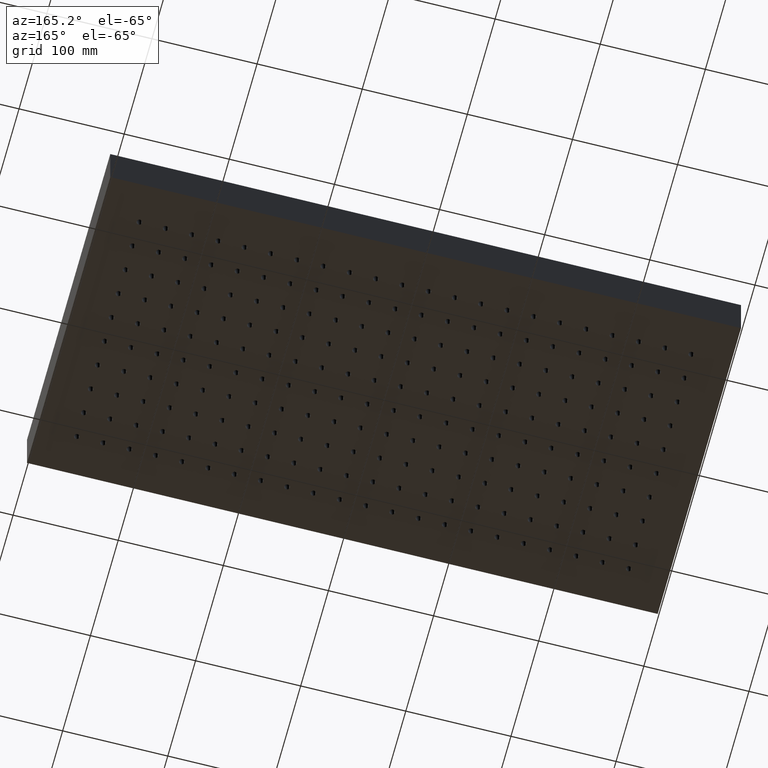
[diagram: clean part render]
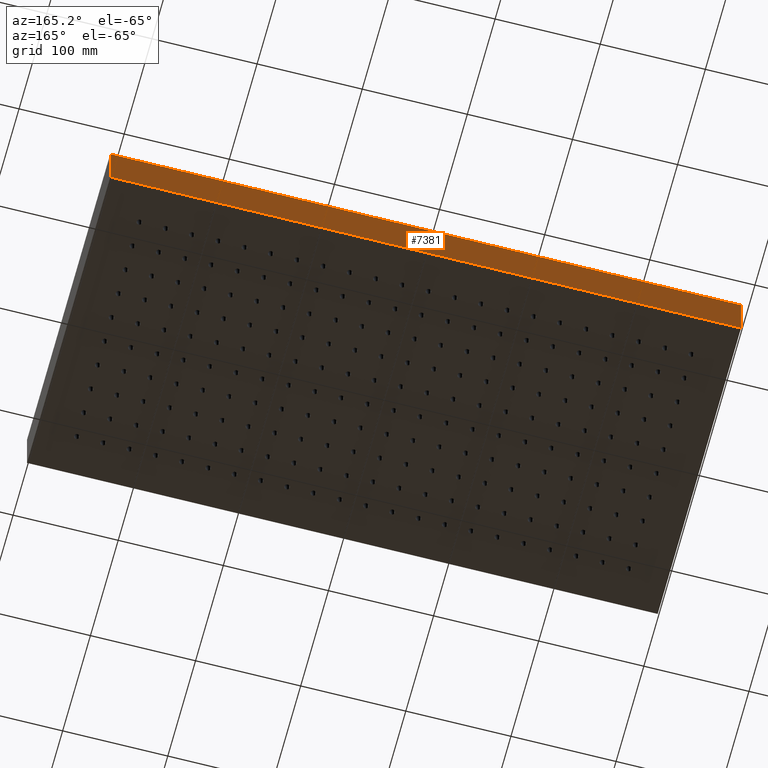
[diagram: same view with one face highlighted and labeled with its STEP entity id]
A machine part, auxiliary view. The second image highlights one B-rep face of the part: STEP entity #7381.
In plain terms, the highlighted planar face has unit normal (0, -1, 0).
Its self-contained STEP definition (entity closure, byte-faithful):
#57 = LINE ( 'NONE', #81, #9912 ) ;
#81 = CARTESIAN_POINT ( 'NONE',  ( -300.0000000000000000, 150.0000000000000000, 0.0000000000000000000 ) ) ;
#489 = CARTESIAN_POINT ( 'NONE',  ( -300.0000000000000000, 150.0000000000000000, 50.00000000000000000 ) ) ;
#505 = CARTESIAN_POINT ( 'NONE',  ( -300.0000000000000000, 150.0000000000000000, 50.00000000000000000 ) ) ;
#1280 = CARTESIAN_POINT ( 'NONE',  ( -300.0000000000000000, 150.0000000000000000, 50.00000000000000000 ) ) ;
#1364 = VERTEX_POINT ( 'NONE', #10774 ) ;
#1576 = VERTEX_POINT ( 'NONE', #7991 ) ;
#1756 = PLANE ( 'NONE',  #10557 ) ;
#2719 = LINE ( 'NONE', #1280, #15756 ) ;
#2885 = VERTEX_POINT ( 'NONE', #14666 ) ;
#2984 = VECTOR ( 'NONE', #15131, 1000.000000000000000 ) ;
#3130 = DIRECTION ( 'NONE',  ( 0.0000000000000000000, -1.000000000000000000, 0.0000000000000000000 ) ) ;
#3416 = VERTEX_POINT ( 'NONE', #505 ) ;
#3931 = EDGE_LOOP ( 'NONE', ( #7212, #7792, #7980, #8559 ) ) ;
#5084 = CARTESIAN_POINT ( 'NONE',  ( 299.9999999999999400, 150.0000000000000000, 50.00000000000000000 ) ) ;
#6473 = EDGE_CURVE ( 'NONE', #1364, #2885, #9748, .T. ) ;
#7207 = EDGE_CURVE ( 'NONE', #2885, #1576, #57, .T. ) ;
#7212 = ORIENTED_EDGE ( 'NONE', *, *, #7207, .T. ) ;
#7381 = ADVANCED_FACE ( 'NONE', ( #14239 ), #1756, .F. ) ;
#7738 = EDGE_CURVE ( 'NONE', #3416, #1576, #2719, .T. ) ;
#7792 = ORIENTED_EDGE ( 'NONE', *, *, #7738, .F. ) ;
#7980 = ORIENTED_EDGE ( 'NONE', *, *, #8269, .F. ) ;
#7991 = CARTESIAN_POINT ( 'NONE',  ( -300.0000000000000000, 150.0000000000000000, 0.0000000000000000000 ) ) ;
#8269 = EDGE_CURVE ( 'NONE', #1364, #3416, #16106, .T. ) ;
#8559 = ORIENTED_EDGE ( 'NONE', *, *, #6473, .T. ) ;
#9748 = LINE ( 'NONE', #5084, #2984 ) ;
#9912 = VECTOR ( 'NONE', #15327, 1000.000000000000000 ) ;
#10557 = AXIS2_PLACEMENT_3D ( 'NONE', #489, #3130, #12000 ) ;
#10774 = CARTESIAN_POINT ( 'NONE',  ( 299.9999999999999400, 150.0000000000000000, 50.00000000000000000 ) ) ;
#11281 = DIRECTION ( 'NONE',  ( -1.000000000000000000, -0.0000000000000000000, -0.0000000000000000000 ) ) ;
#12000 = DIRECTION ( 'NONE',  ( 0.0000000000000000000, -0.0000000000000000000, -1.000000000000000000 ) ) ;
#12836 = DIRECTION ( 'NONE',  ( -0.0000000000000000000, -0.0000000000000000000, -1.000000000000000000 ) ) ;
#12849 = VECTOR ( 'NONE', #11281, 1000.000000000000000 ) ;
#14239 = FACE_OUTER_BOUND ( 'NONE', #3931, .T. ) ;
#14666 = CARTESIAN_POINT ( 'NONE',  ( 299.9999999999999400, 150.0000000000000000, 0.0000000000000000000 ) ) ;
#15131 = DIRECTION ( 'NONE',  ( -0.0000000000000000000, -0.0000000000000000000, -1.000000000000000000 ) ) ;
#15327 = DIRECTION ( 'NONE',  ( -1.000000000000000000, -0.0000000000000000000, -0.0000000000000000000 ) ) ;
#15756 = VECTOR ( 'NONE', #12836, 1000.000000000000000 ) ;
#16106 = LINE ( 'NONE', #16205, #12849 ) ;
#16205 = CARTESIAN_POINT ( 'NONE',  ( -300.0000000000000000, 150.0000000000000000, 50.00000000000000000 ) ) ;